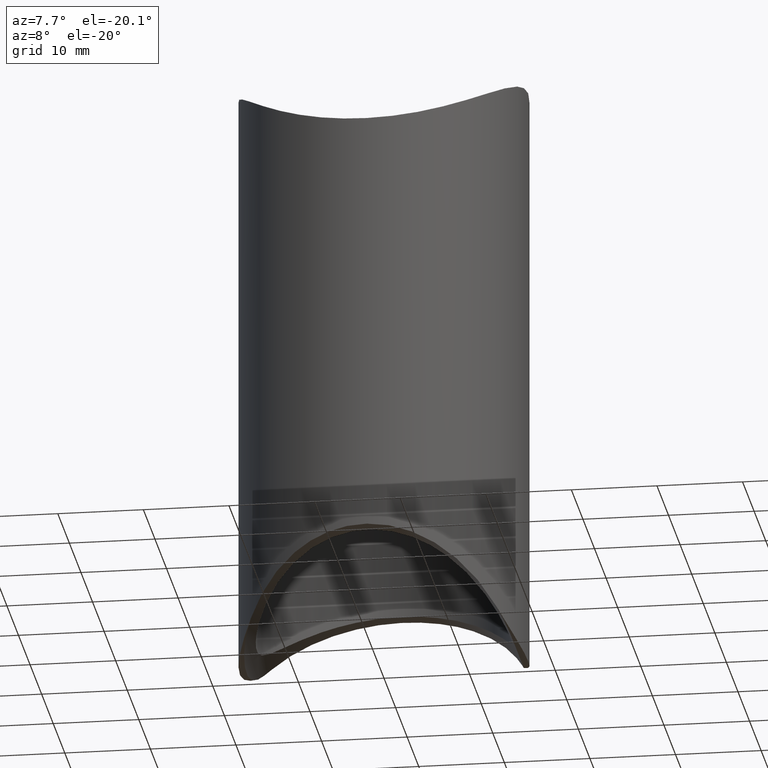
[diagram: clean part render]
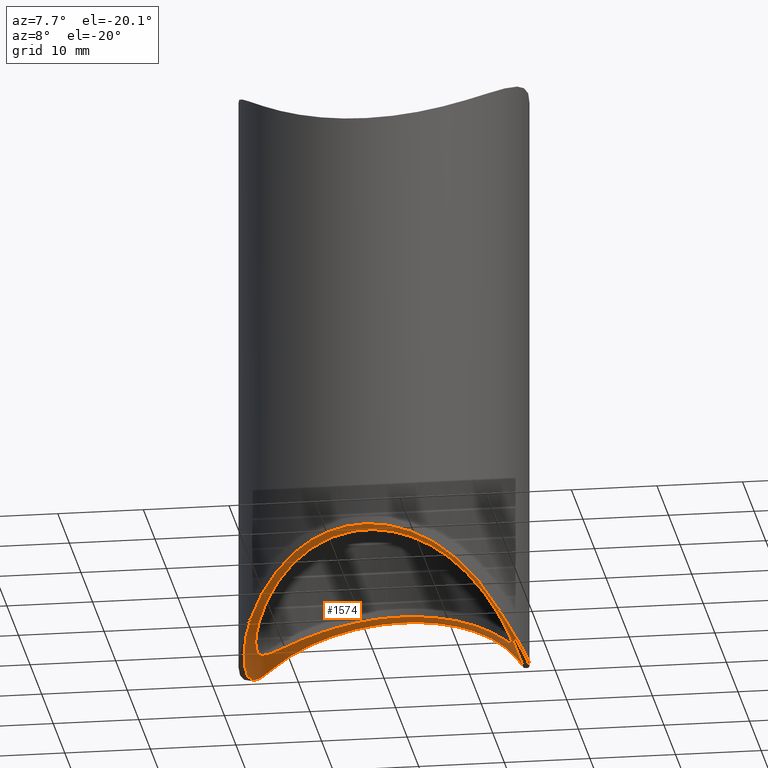
[diagram: same view with one face highlighted and labeled with its STEP entity id]
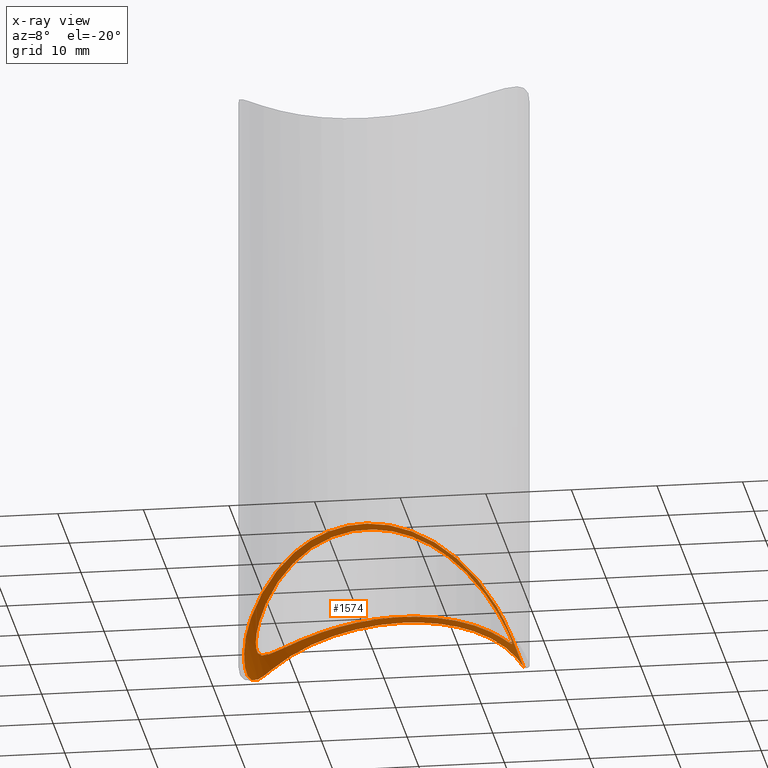
[diagram: x-ray of the same camera — body ghosted, the highlighted face saturated]
A machine part, auxiliary view. The second image highlights one B-rep face of the part: STEP entity #1574.
The next image is the same camera in x-ray: the body ghosted, the highlighted face saturated — about 0% of this face is hidden behind the body in this view.
In plain terms, the highlighted cylindrical surface (partial cylindrical patch) has radius 16.85 mm, axis along (-0, 1, -0).
Its self-contained STEP definition (entity closure, byte-faithful):
#34 = CARTESIAN_POINT ( 'NONE',  ( 14.85000000000000497, 0.5337185454284697483, -36.06258830504228996 ) ) ;
#77 = CARTESIAN_POINT ( 'NONE',  ( -13.80986736641330204, 5.478992954756994216, -34.36552005512524488 ) ) ;
#120 = CARTESIAN_POINT ( 'NONE',  ( -14.84766742364043601, 0.3731762518895063718, -36.05823849699207528 ) ) ;
#165 = CARTESIAN_POINT ( 'NONE',  ( 9.336035647253272174, 11.55756174458075591, -29.99123639260663410 ) ) ;
#216 = CARTESIAN_POINT ( 'NONE',  ( 14.33830603771036039, -8.850733301199310787, -35.17426669880069312 ) ) ;
#250 = CARTESIAN_POINT ( 'NONE',  ( 12.85683658786322781, -7.486485150181893644, -33.10838764306961224 ) ) ;
#284 = CARTESIAN_POINT ( 'NONE',  ( -14.33830603771040302, 8.850733301199255720, -35.17426669880074996 ) ) ;
#294 = CARTESIAN_POINT ( 'NONE',  ( 14.29023625490866856, -4.067199762280973907, -35.09280707293265067 ) ) ;
#324 = VERTEX_POINT ( 'NONE', #9545 ) ;
#340 = CARTESIAN_POINT ( 'NONE',  ( 14.85000000000000320, 0.000000000000000000, -36.06258830504227575 ) ) ;
#505 = DIRECTION ( 'NONE',  ( 0.000000000000000000, 0.000000000000000000, 1.000000000000000000 ) ) ;
#555 = CARTESIAN_POINT ( 'NONE',  ( 13.28827323733147558, -6.693018356430997962, -33.64576833582614768 ) ) ;
#601 = CARTESIAN_POINT ( 'NONE',  ( -2.962489176657164602, -14.55384799524439288, -27.43543255682871518 ) ) ;
#666 = CARTESIAN_POINT ( 'NONE',  ( -15.27404900943557564, -6.697564519343093714, -36.90538022970848431 ) ) ;
#738 = CARTESIAN_POINT ( 'NONE',  ( 14.94563434370530963, 7.696245262310702273, -36.22738822914874390 ) ) ;
#840 = CARTESIAN_POINT ( 'NONE',  ( -16.03255117239265104, 0.4150480287388849110, -38.84042644864182137 ) ) ;
#887 = CARTESIAN_POINT ( 'NONE',  ( -14.66089052385619951, 8.284698056829535417, -35.71456311144023488 ) ) ;
#932 = CARTESIAN_POINT ( 'NONE',  ( -16.00641160165332622, -1.667798721067833112, -38.75729801903477068 ) ) ;
#977 = CARTESIAN_POINT ( 'NONE',  ( -15.37183266572386842, 6.345739140172487858, -37.12030319628423314 ) ) ;
#1012 = CARTESIAN_POINT ( 'NONE',  ( -15.27578327436293826, 6.691575246255256459, -36.90913252329641381 ) ) ;
#1048 = CARTESIAN_POINT ( 'NONE',  ( 14.42511290173060701, 3.561968207167502065, -35.31407602037831595 ) ) ;
#1063 = FACE_BOUND ( 'NONE', #4087, .T. ) ;
#1088 = CARTESIAN_POINT ( 'NONE',  ( -6.866207707502764990, 13.20497876053036279, -28.60648132550580414 ) ) ;
#1106 = EDGE_CURVE ( 'NONE', #324, #10790, #8243, .T. ) ;
#1134 = CARTESIAN_POINT ( 'NONE',  ( 14.70621104912670951, 2.077155966917818120, -35.79964767959629768 ) ) ;
#1181 = CARTESIAN_POINT ( 'NONE',  ( -14.85347316830713460, -0.4204623531433024364, -36.06906498808914563 ) ) ;
#1226 = CARTESIAN_POINT ( 'NONE',  ( 5.153359097162392821, 13.96290337473974041, -27.95266361570251235 ) ) ;
#1274 = CARTESIAN_POINT ( 'NONE',  ( 8.120412847181105676, -12.44227041509037690, -29.25382660443976590 ) ) ;
#1321 = CARTESIAN_POINT ( 'NONE',  ( -10.09023634742619002, -10.93375504787208818, -30.50526876533256981 ) ) ;
#1367 = CARTESIAN_POINT ( 'NONE',  ( -2.703621006105747071, -14.60416598710265923, -27.39126202055344450 ) ) ;
#1574 = ADVANCED_FACE ( 'NONE', ( #1063, #6620 ), #4864, .F. ) ;
#1586 = CARTESIAN_POINT ( 'NONE',  ( -2.186446031989910832, -14.69049639980548605, -27.31541414448777161 ) ) ;
#1631 = CARTESIAN_POINT ( 'NONE',  ( -5.198860883977538982, -13.94593436385049756, -27.96742165834623961 ) ) ;
#1727 = CARTESIAN_POINT ( 'NONE',  ( 6.992480507864952344, 20.75106867027853852, -23.27393132972146361 ) ) ;
#1817 = CARTESIAN_POINT ( 'NONE',  ( 14.67651323802632035, 8.302833124201457693, -35.72216687579848582 ) ) ;
#1859 = CARTESIAN_POINT ( 'NONE',  ( 15.97739153747050267, -2.087235806658165327, -38.67213535089842935 ) ) ;
#2050 = EDGE_CURVE ( 'NONE', #10790, #12705, #11157, .T. ) ;
#2081 = CARTESIAN_POINT ( 'NONE',  ( -1.761881652578448865, 14.74747148871322899, -27.26529369238327405 ) ) ;
#2122 = CARTESIAN_POINT ( 'NONE',  ( -14.69513818397567562, 2.200683682175310629, -35.77938234782533300 ) ) ;
#2161 = CARTESIAN_POINT ( 'NONE',  ( 13.85174356440690246, 5.372735168053187849, -34.42565332718162807 ) ) ;
#2203 = CARTESIAN_POINT ( 'NONE',  ( 14.62643296678601423, 2.579666451399170946, -35.65860753464538391 ) ) ;
#2246 = CARTESIAN_POINT ( 'NONE',  ( 4.195298415236470291, 14.28262021678101412, -27.67318562837164819 ) ) ;
#2289 = CARTESIAN_POINT ( 'NONE',  ( -14.64214189400759558, -2.489221333000799508, -35.68615165807499068 ) ) ;
#2336 = CARTESIAN_POINT ( 'NONE',  ( 10.95587182889223143, -10.03494326004679316, -31.21639626298422598 ) ) ;
#2601 = CARTESIAN_POINT ( 'NONE',  ( -14.04079741491719169, -4.858879712201337853, -34.70578023356798525 ) ) ;
#2646 = CARTESIAN_POINT ( 'NONE',  ( 9.295987571165273522, -11.61989271208340924, -29.94196807366316193 ) ) ;
#2694 = CARTESIAN_POINT ( 'NONE',  ( 15.05772893657610112, -7.356076624847932344, -36.45863205600515755 ) ) ;
#2739 = CARTESIAN_POINT ( 'NONE',  ( 16.02589700891735447, -0.8330019672724850999, -38.81970570695590084 ) ) ;
#2788 = CARTESIAN_POINT ( 'NONE',  ( 14.33830603771035683, 8.850733301199255720, -35.17426669880068602 ) ) ;
#2827 = CARTESIAN_POINT ( 'NONE',  ( 15.37085391537183199, 6.349814861701188917, -37.11805915626118235 ) ) ;
#2878 = CARTESIAN_POINT ( 'NONE',  ( -6.992480507865020734, 20.75106867027851720, -23.27393132972148493 ) ) ;
#3087 = CARTESIAN_POINT ( 'NONE',  ( -11.25192803785623141, 9.733573088986805288, -31.45574601374557488 ) ) ;
#3132 = CARTESIAN_POINT ( 'NONE',  ( 14.73984620838774084, 1.823651298003658994, -35.86028214297031980 ) ) ;
#3177 = CARTESIAN_POINT ( 'NONE',  ( 14.58004324233642990, 2.829680014725449055, -35.57779728234220329 ) ) ;
#3224 = CARTESIAN_POINT ( 'NONE',  ( 0.5949011549592162496, 14.84728096870672687, -27.17739629147825298 ) ) ;
#3240 = CARTESIAN_POINT ( 'NONE',  ( 14.33830603771035683, 8.850733301199255720, -35.17426669880068602 ) ) ;
#3269 = CARTESIAN_POINT ( 'NONE',  ( -11.82028320883488348, 9.034778701579103455, -31.99360113319572818 ) ) ;
#3317 = CARTESIAN_POINT ( 'NONE',  ( -4.238472498119727483, -14.27064078205753361, -27.68366308847048884 ) ) ;
#3354 = CARTESIAN_POINT ( 'NONE',  ( 14.70835926490762624, -2.112078899318651892, -35.80306413579584301 ) ) ;
#3576 = CARTESIAN_POINT ( 'NONE',  ( -13.33885833162109691, -6.592601314833379078, -33.71104094344829605 ) ) ;
#3616 = CARTESIAN_POINT ( 'NONE',  ( -12.91299101705203789, -7.388455275546401246, -33.17550131010271741 ) ) ;
#3661 = CARTESIAN_POINT ( 'NONE',  ( -14.32516193693763285, -3.942390085328985716, -35.14910091414307658 ) ) ;
#3707 = CARTESIAN_POINT ( 'NONE',  ( 16.00641160165331200, 1.667798721067748957, -38.75729801903476357 ) ) ;
#3747 = CARTESIAN_POINT ( 'NONE',  ( 15.61615116683198856, -5.250536131401841722, -37.69345762897508934 ) ) ;
#3805 = CARTESIAN_POINT ( 'NONE',  ( -14.67651323802632746, -8.302833124201519865, -35.72216687579847871 ) ) ;
#3866 =( BOUNDED_CURVE ( )  B_SPLINE_CURVE ( 3, ( #9880, #2878, #1727, #2788 ),
 .UNSPECIFIED., .F., .T. ) 
 B_SPLINE_CURVE_WITH_KNOTS ( ( 4, 4 ),
 ( 5.265416743293894086, 7.300953871065275713 ),
 .UNSPECIFIED. ) 
 CURVE ( )  GEOMETRIC_REPRESENTATION_ITEM ( )  RATIONAL_B_SPLINE_CURVE ( ( 1.000000000000000000, 0.6835107141918608242, 0.6835107141918608242, 1.000000000000000000 ) ) 
 REPRESENTATION_ITEM ( '' )  );
#3896 = CARTESIAN_POINT ( 'NONE',  ( -15.89246403134230157, 3.311973420611289409, -38.42295678475843346 ) ) ;
#3941 = CARTESIAN_POINT ( 'NONE',  ( -15.97739153747052043, 2.087235806658074289, -38.67213535089842225 ) ) ;
#3966 = VERTEX_POINT ( 'NONE', #3240 ) ;
#4035 = CARTESIAN_POINT ( 'NONE',  ( -15.80561270661905482, -4.110770705644724465, -38.17485026464218834 ) ) ;
#4087 = EDGE_LOOP ( 'NONE', ( #7138 ) ) ;
#4107 = CARTESIAN_POINT ( 'NONE',  ( 6.520692853345605222, 13.35111923665892419, -28.48017074970242390 ) ) ;
#4155 = CARTESIAN_POINT ( 'NONE',  ( 2.678880942609608962, 14.61553673861295621, -27.38135068848804110 ) ) ;
#4199 = CARTESIAN_POINT ( 'NONE',  ( 6.959821861796367415, 13.12694510440806006, -28.67245063592170595 ) ) ;
#4238 = CARTESIAN_POINT ( 'NONE',  ( -14.39549266885021339, 3.680163630133699737, -35.26503106070053661 ) ) ;
#4255 = EDGE_CURVE ( 'NONE', #12705, #3966, #3866, .T. ) ;
#4284 = CARTESIAN_POINT ( 'NONE',  ( 11.32765514747299740, 9.645698033166775431, -31.52388058687287398 ) ) ;
#4336 = CARTESIAN_POINT ( 'NONE',  ( -14.75215325585829262, -1.721725660211183229, -35.88256020424506687 ) ) ;
#4379 = CARTESIAN_POINT ( 'NONE',  ( -14.71950306614064097, -1.981103625455974404, -35.82347938490951123 ) ) ;
#4597 = CARTESIAN_POINT ( 'NONE',  ( -11.34192196800901087, -9.596346335307353925, -31.55760541920022533 ) ) ;
#4641 = CARTESIAN_POINT ( 'NONE',  ( -14.44722063276459245, -3.471204382162122570, -35.35091498290922374 ) ) ;
#4687 = CARTESIAN_POINT ( 'NONE',  ( -9.395726281820008907, -11.53808554132294084, -30.00940244348284125 ) ) ;
#4859 = CARTESIAN_POINT ( 'NONE',  ( 16.03248700980444497, 0.8360511581702350092, -38.84022803782291078 ) ) ;
#4864 = CYLINDRICAL_SURFACE ( 'NONE', #7438, 16.85000000000000142 ) ;
#4918 = CARTESIAN_POINT ( 'NONE',  ( -15.89209639272137764, -3.318211720567431300, -38.42186081145047893 ) ) ;
#5003 = CARTESIAN_POINT ( 'NONE',  ( -16.02589700891736513, 0.8330019672723938395, -38.81970570695592215 ) ) ;
#5125 = CARTESIAN_POINT ( 'NONE',  ( -13.26467870434423091, 6.738545894726238217, -33.61573697114086912 ) ) ;
#5169 = CARTESIAN_POINT ( 'NONE',  ( 10.37795952091324558, 10.63149315026179487, -30.74387540105810501 ) ) ;
#5211 = CARTESIAN_POINT ( 'NONE',  ( -4.050271645165130607, 14.29604574488175750, -27.66128690687451552 ) ) ;
#5258 = CARTESIAN_POINT ( 'NONE',  ( -9.981113102458014197, 11.03293754553538264, -30.42465399057771691 ) ) ;
#5264 = CARTESIAN_POINT ( 'NONE',  ( -14.33830603771036927, -8.850733301199310787, -35.17426669880068602 ) ) ;
#5305 = CARTESIAN_POINT ( 'NONE',  ( -8.247648307270500467, -12.35799113853138742, -29.32475053929826814 ) ) ;
#5347 = CARTESIAN_POINT ( 'NONE',  ( 9.999510993327104913, -11.01667531282564205, -30.43794333616117598 ) ) ;
#5392 = CARTESIAN_POINT ( 'NONE',  ( 7.708501237368294845, -12.70195840869459047, -29.03420245230134356 ) ) ;
#5468 = ORIENTED_EDGE ( 'NONE', *, *, #2050, .T. ) ;
#5620 = CARTESIAN_POINT ( 'NONE',  ( -11.03978959069899979, -9.942579546653941946, -31.28867708699897676 ) ) ;
#5664 = CARTESIAN_POINT ( 'NONE',  ( 4.046708372150499500, -14.29722004230590393, -27.66026429259286701 ) ) ;
#5861 = CARTESIAN_POINT ( 'NONE',  ( -14.94563434370531674, -7.696245262310778656, -36.22738822914872969 ) ) ;
#5891 = CARTESIAN_POINT ( 'NONE',  ( 15.80561270661904771, 4.110770705644641865, -38.17485026464221676 ) ) ;
#5906 = CARTESIAN_POINT ( 'NONE',  ( -14.93572944484840725, 7.674737671180441367, -36.21929322985293709 ) ) ;
#6076 = CARTESIAN_POINT ( 'NONE',  ( -15.54254231652667961, -5.623557291692793392, -37.51359767441859105 ) ) ;
#6108 = CARTESIAN_POINT ( 'NONE',  ( -2.024146193593749476, 14.71372595802833949, -27.29498613379446326 ) ) ;
#6151 = CARTESIAN_POINT ( 'NONE',  ( -5.496291467139168496, 13.80440955620377963, -28.08914305072277529 ) ) ;
#6195 = CARTESIAN_POINT ( 'NONE',  ( -2.796602950750834093, 14.58657892811595147, -27.40670782658535742 ) ) ;
#6238 = CARTESIAN_POINT ( 'NONE',  ( -14.83852790279338940, 0.6408443824371897746, -36.04115751292867742 ) ) ;
#6286 = CARTESIAN_POINT ( 'NONE',  ( 14.30074613296590336, 4.029472854742030208, -35.10978721393541946 ) ) ;
#6295 = CARTESIAN_POINT ( 'NONE',  ( -6.992480507864962114, -20.75106867027850299, -23.27393132972149559 ) ) ;
#6329 = CARTESIAN_POINT ( 'NONE',  ( -1.146891711628780453, -14.81489610819413727, -27.20595222640935518 ) ) ;
#6375 = CARTESIAN_POINT ( 'NONE',  ( 0.4292279381722697851, -14.84615855348004310, -27.17838640742304790 ) ) ;
#6422 = CARTESIAN_POINT ( 'NONE',  ( 3.548469635563034963, -14.42913428704138745, -27.54479027984893591 ) ) ;
#6561 = CARTESIAN_POINT ( 'NONE',  ( 14.93572944484838239, -7.674737671180534626, -36.21929322985292288 ) ) ;
#6620 = FACE_OUTER_BOUND ( 'NONE', #11158, .T. ) ;
#6691 = CARTESIAN_POINT ( 'NONE',  ( 0.9584056542086568653, -14.82140745745683574, -27.20019436182138506 ) ) ;
#6780 = CARTESIAN_POINT ( 'NONE',  ( 14.50742055424329457, -8.576765528027674890, -35.44823447197251909 ) ) ;
#6906 = CARTESIAN_POINT ( 'NONE',  ( 15.27578327436291339, -6.691575246255349718, -36.90913252329639249 ) ) ;
#6961 = CARTESIAN_POINT ( 'NONE',  ( -16.03248700980445918, -0.8360511581703217177, -38.84022803782292499 ) ) ;
#7092 = CARTESIAN_POINT ( 'NONE',  ( -15.80675836441401394, 4.103148943636785617, -38.17783707643135216 ) ) ;
#7128 = CARTESIAN_POINT ( 'NONE',  ( 12.62871516008825878, 7.825517943811307831, -32.86386110683889683 ) ) ;
#7138 = ORIENTED_EDGE ( 'NONE', *, *, #12397, .T. ) ;
#7174 = CARTESIAN_POINT ( 'NONE',  ( -14.26696052176923857, 4.147269479893059163, -35.05570393558183895 ) ) ;
#7214 = CARTESIAN_POINT ( 'NONE',  ( 14.82137406707583338, 1.055676076428416987, -36.00863508246413858 ) ) ;
#7254 = CARTESIAN_POINT ( 'NONE',  ( -14.61090882865943108, 2.700954780088081986, -35.62925058752862384 ) ) ;
#7300 = CARTESIAN_POINT ( 'NONE',  ( 8.199149273984781772, 12.39025577956445723, -29.29760808491955970 ) ) ;
#7343 = CARTESIAN_POINT ( 'NONE',  ( -7.847113194740653164, -12.61670451861868258, -29.10639145206129186 ) ) ;
#7384 = CARTESIAN_POINT ( 'NONE',  ( 11.83050660826200051, -8.987142288447667937, -32.02016545658872104 ) ) ;
#7438 = AXIS2_PLACEMENT_3D ( 'NONE', #8514, #8471, #505 ) ;
#7650 = CARTESIAN_POINT ( 'NONE',  ( 13.83324424046044321, -5.420046482378499952, -34.39899913380897090 ) ) ;
#7694 = CARTESIAN_POINT ( 'NONE',  ( -14.59752979601756806, -2.738039412245442783, -35.60808354691256739 ) ) ;
#7761 = CARTESIAN_POINT ( 'NONE',  ( -15.37085391537184442, -6.349814861701263524, -37.11805915626118946 ) ) ;
#7833 = CARTESIAN_POINT ( 'NONE',  ( 15.99829739484042612, -1.670812307845578548, -38.73548734911563685 ) ) ;
#7924 = CARTESIAN_POINT ( 'NONE',  ( 15.54183458020775710, -5.626486496312912422, -37.51197801817649236 ) ) ;
#8058 = CARTESIAN_POINT ( 'NONE',  ( -15.05772893657612599, 7.356076624847839085, -36.45863205600517176 ) ) ;
#8129 = CARTESIAN_POINT ( 'NONE',  ( 7.798157637525822139, 12.64691842238175923, -29.08081618874095753 ) ) ;
#8172 = CARTESIAN_POINT ( 'NONE',  ( -3.555295014665622144, 14.42738607371107129, -27.54632078535466277 ) ) ;
#8217 = CARTESIAN_POINT ( 'NONE',  ( 11.88671115716818427, 8.946021942756241074, -32.06003155815450611 ) ) ;
#8243 =( BOUNDED_CURVE ( )  B_SPLINE_CURVE ( 3, ( #216, #12347, #6295, #9308 ),
 .UNSPECIFIED., .F., .F. ) 
 B_SPLINE_CURVE_WITH_KNOTS ( ( 4, 4 ),
 ( 5.265416743293897639, 7.300953871065274825 ),
 .UNSPECIFIED. ) 
 CURVE ( )  GEOMETRIC_REPRESENTATION_ITEM ( )  RATIONAL_B_SPLINE_CURVE ( ( 1.000000000000000000, 0.6835107141918621565, 0.6835107141918621565, 1.000000000000000000 ) ) 
 REPRESENTATION_ITEM ( '' )  );
#8259 = CARTESIAN_POINT ( 'NONE',  ( 8.968094523146223906, 11.84558009233951736, -29.75281018689225832 ) ) ;
#8300 = CARTESIAN_POINT ( 'NONE',  ( -0.4503798214893974250, 14.85236740604971040, -27.17291359742175061 ) ) ;
#8346 = CARTESIAN_POINT ( 'NONE',  ( -7.005887995645437627, -13.10251700222812588, -28.69334647240638247 ) ) ;
#8384 = CARTESIAN_POINT ( 'NONE',  ( 1.224867209540094093, -14.80177102240165077, -27.21749374236323860 ) ) ;
#8428 = ORIENTED_EDGE ( 'NONE', *, *, #4255, .T. ) ;
#8471 = DIRECTION ( 'NONE',  ( -0.000000000000000000, 1.000000000000000000, -0.000000000000000000 ) ) ;
#8514 = CARTESIAN_POINT ( 'NONE',  ( -7.288179263425684655E-15, -16.85000000000000142, -44.02499999999999858 ) ) ;
#8572 = CARTESIAN_POINT ( 'NONE',  ( 15.37183266572384710, -6.345739140172580228, -37.12030319628421182 ) ) ;
#8652 = CARTESIAN_POINT ( 'NONE',  ( 14.82059633009705379, -1.070809956460375245, -36.00714579572598950 ) ) ;
#8696 = CARTESIAN_POINT ( 'NONE',  ( 5.501981088473553605, -13.80218147165003906, -28.09107526868159965 ) ) ;
#8778 = CARTESIAN_POINT ( 'NONE',  ( 15.27404900943556498, 6.697564519343016443, -36.90538022970848431 ) ) ;
#9090 = CARTESIAN_POINT ( 'NONE',  ( -14.33830603771040302, 8.850733301199255720, -35.17426669880074996 ) ) ;
#9118 = CARTESIAN_POINT ( 'NONE',  ( -0.9742325924817968330, 14.82740503015124034, -27.19492867642007639 ) ) ;
#9163 = CARTESIAN_POINT ( 'NONE',  ( -14.80625528133571578, 1.169357254391273360, -35.98146497339254068 ) ) ;
#9208 = CARTESIAN_POINT ( 'NONE',  ( 14.85000000000000320, 0.000000000000000000, -36.06258830504227575 ) ) ;
#9252 = CARTESIAN_POINT ( 'NONE',  ( 12.85979648648153528, 7.440027366611723814, -33.13167915402733144 ) ) ;
#9308 = CARTESIAN_POINT ( 'NONE',  ( -14.33830603771036927, -8.850733301199310787, -35.17426669880068602 ) ) ;
#9338 = CARTESIAN_POINT ( 'NONE',  ( -6.562503311283061080, -13.33059395647258505, -28.49780065621222747 ) ) ;
#9385 = CARTESIAN_POINT ( 'NONE',  ( 14.62663173425264240, -2.614039007887573263, -35.65682215715171566 ) ) ;
#9545 = CARTESIAN_POINT ( 'NONE',  ( 14.33830603771036039, -8.850733301199310787, -35.17426669880069312 ) ) ;
#9652 = CARTESIAN_POINT ( 'NONE',  ( -13.87761221008346979, -5.305717460286821563, -34.46312374063735007 ) ) ;
#9693 = CARTESIAN_POINT ( 'NONE',  ( 11.25797763761319459, -9.694717769586524980, -31.48167992380756530 ) ) ;
#9712 = EDGE_CURVE ( 'NONE', #3966, #324, #11015, .T. ) ;
#9810 = ORIENTED_EDGE ( 'NONE', *, *, #9712, .T. ) ;
#9874 = CARTESIAN_POINT ( 'NONE',  ( 15.61598201808591035, 5.251189557176251022, -37.69306571020722885 ) ) ;
#9880 = CARTESIAN_POINT ( 'NONE',  ( -14.33830603771040302, 8.850733301199255720, -35.17426669880074996 ) ) ;
#9922 = CARTESIAN_POINT ( 'NONE',  ( 15.89209639272137409, 3.318211720567351808, -38.42186081145050025 ) ) ;
#10068 = CARTESIAN_POINT ( 'NONE',  ( -15.54183458020777486, 5.626486496312820940, -37.51197801817650657 ) ) ;
#10191 = CARTESIAN_POINT ( 'NONE',  ( 10.04095430796600930, 10.95070918579793684, -30.48663528411497481 ) ) ;
#10237 = CARTESIAN_POINT ( 'NONE',  ( 13.29003430593662216, 6.641036141799102843, -33.66093743389916426 ) ) ;
#10285 = CARTESIAN_POINT ( 'NONE',  ( -9.277032841501926086, 11.63495390418400000, -29.92951312976327571 ) ) ;
#10329 = CARTESIAN_POINT ( 'NONE',  ( 2.156754270076864710, 14.70186584171747590, -27.30542736181615737 ) ) ;
#10372 = CARTESIAN_POINT ( 'NONE',  ( 0.1654096244111736280, -14.85140885249488996, -27.17375837703135133 ) ) ;
#10419 = CARTESIAN_POINT ( 'NONE',  ( 14.85000000000000142, -0.5337185454284697483, -36.06258830504225443 ) ) ;
#10640 = CARTESIAN_POINT ( 'NONE',  ( -11.90753864018524943, -8.884794901857180349, -32.09664533163703481 ) ) ;
#10682 = CARTESIAN_POINT ( 'NONE',  ( -12.17183793919947554, -8.518913561785232957, -32.36727827193488594 ) ) ;
#10723 = CARTESIAN_POINT ( 'NONE',  ( 12.10154892819007522, -8.618631868014196229, -32.29418346242481164 ) ) ;
#10774 = CARTESIAN_POINT ( 'NONE',  ( 14.66089052385617286, -8.284698056829631341, -35.71456311144020646 ) ) ;
#10790 = VERTEX_POINT ( 'NONE', #5264 ) ;
#10816 = CARTESIAN_POINT ( 'NONE',  ( 14.33830603771036039, -8.850733301199310787, -35.17426669880069312 ) ) ;
#10900 = CARTESIAN_POINT ( 'NONE',  ( 14.33830603771035683, 8.850733301199255720, -35.17426669880068602 ) ) ;
#10954 = CARTESIAN_POINT ( 'NONE',  ( -15.99829739484043323, 1.670812307845487066, -38.73548734911565106 ) ) ;
#11015 = B_SPLINE_CURVE_WITH_KNOTS ( 'NONE', 3,
 ( #10900, #1817, #738, #8778, #2827, #12602, #9874, #5891, #9922, #3707, #4859, #12894, #2739, #7833, #1859, #11924, #12935, #3747, #7924, #8572, #6906, #2694, #6561, #10774, #6780, #10816 ),
 .UNSPECIFIED., .F., .F.,
 ( 4, 2, 2, 2, 2, 2, 2, 2, 2, 2, 2, 2, 4 ),
 ( 8.845388854693243284E-18, 0.002497983084674302787, 0.003746974627011456348, 0.004995966169348609910, 0.007493949254022919636, 0.009991932338697230229, 0.01124092388103438596, 0.01248991542337154169, 0.01498789850804584795, 0.01623689005038300714, 0.01748588159272016287, 0.01873487313505731860, 0.01998386467739447434 ),
 .UNSPECIFIED. ) ;
#11157 = B_SPLINE_CURVE_WITH_KNOTS ( 'NONE', 3,
 ( #12867, #3805, #5861, #666, #7761, #6076, #11943, #4035, #4918, #932, #6961, #840, #5003, #10954, #3941, #3896, #7092, #12075, #10068, #977, #1012, #8058, #5906, #887, #12950, #9090 ),
 .UNSPECIFIED., .F., .F.,
 ( 4, 2, 2, 2, 2, 2, 2, 2, 2, 2, 2, 2, 4 ),
 ( 1.734723475976807094E-18, 0.002497983084674298016, 0.003746974627011447241, 0.004995966169348596900, 0.007493949254022899686, 0.009991932338697202473, 0.01124092388103435300, 0.01248991542337150699, 0.01498789850804581325, 0.01623689005038296551, 0.01748588159272012471, 0.01873487313505727697, 0.01998386467739442923 ),
 .UNSPECIFIED. ) ;
#11158 = EDGE_LOOP ( 'NONE', ( #8428, #9810, #12745, #5468 ) ) ;
#11160 = CARTESIAN_POINT ( 'NONE',  ( -12.83261408202376508, 7.527970320439417051, -33.07978782064744649 ) ) ;
#11183 = B_SPLINE_CURVE_WITH_KNOTS ( 'NONE', 3,
 ( #9208, #34, #7214, #3132, #1134, #2203, #3177, #1048, #6286, #12161, #2161, #12250, #10237, #9252, #7128, #8217, #4284, #5169, #10191, #165, #8259, #7300, #8129, #4199, #4107, #1226, #2246, #4155, #10329, #11341, #3224, #8300, #9118, #2081, #6108, #11251, #6195, #8172, #5211, #12340, #6151, #1088, #12298, #10285, #5258, #3087, #3269, #11160, #5125, #77, #12203, #7174, #4238, #7254, #2122, #11206, #9163, #6238, #120, #1181, #11292, #4336, #4379, #2289, #7694, #4641, #3661, #2601, #9652, #3576, #3616, #10682, #10640, #4597, #5620, #1321, #4687, #5305, #7343, #8346, #9338, #1631, #3317, #601, #1367, #1586, #12388, #6329, #11386, #10372, #6375, #6691, #8384, #12477, #11699, #6422, #5664, #12731, #8696, #11431, #12685, #5392, #1274, #2646, #5347, #2336, #9693, #7384, #10723, #250, #555, #7650, #12429, #294, #11651, #9385, #3354, #8652, #10419, #340 ),
 .UNSPECIFIED., .T., .F.,
 ( 4, 2, 2, 2, 2, 2, 2, 2, 2, 2, 2, 2, 2, 2, 2, 2, 2, 2, 2, 2, 2, 2, 2, 2, 2, 2, 2, 2, 2, 2, 2, 2, 2, 2, 2, 2, 2, 2, 2, 2, 2, 2, 2, 2, 2, 2, 2, 2, 2, 2, 2, 2, 2, 2, 2, 2, 2, 2, 2, 4 ),
 ( 0.000000000000000000, 0.001572259968968426009, 0.002358389953452639121, 0.003144519937936852451, 0.004716779906905279977, 0.006289039875873706636, 0.007861299844842132428, 0.009433559813810561689, 0.01257807975174742195, 0.01415033972071584774, 0.01572259968968427180, 0.01729485965865269759, 0.01886711962762112685, 0.02201163956555797496, 0.02358389953452640075, 0.02515615950349482655, 0.02672841947246325234, 0.02751454945694746523, 0.02830067944143167813, 0.02987293941040010739, 0.03144519937936852971, 0.03458971931730538824, 0.03773423925524224676, 0.04087875919317910528, 0.04402327913111594992, 0.04559553910008438266, 0.04716779906905281539, 0.04874005903802124812, 0.04952618902250546101, 0.05031231900698967391, 0.05188457897595809970, 0.05267070896044231260, 0.05345683894492652549, 0.05502909891389495822, 0.05660135888286338401, 0.05974587882080024948, 0.06131813878976867527, 0.06289039875873708718, 0.06603491869667393876, 0.06760717866564236456, 0.06917943863461079035, 0.07232395857254764193, 0.07311008855703185483, 0.07389621854151606772, 0.07546847851048449352, 0.07625460849496870641, 0.07704073847945291931, 0.07861299844842134510, 0.08018525841738977089, 0.08175751838635819668, 0.08332977835532662247, 0.08490203832429504827, 0.08804655826223189985, 0.08961881823120032564, 0.09119107820016875143, 0.09433559813810560302, 0.09590785810707402881, 0.09748011807604245460, 0.09905237804501088039, 0.1006246380139793062 ),
 .UNSPECIFIED. ) ;
#11206 = CARTESIAN_POINT ( 'NONE',  ( -14.78327366311099667, 1.429761704044356652, -35.93914698503817107 ) ) ;
#11251 = CARTESIAN_POINT ( 'NONE',  ( -2.540995714757373847, 14.63332635317689956, -27.36565209697405976 ) ) ;
#11292 = CARTESIAN_POINT ( 'NONE',  ( -14.82912093102056339, -0.9439979590065424864, -36.02305783197200384 ) ) ;
#11341 = CARTESIAN_POINT ( 'NONE',  ( 1.116329203746461607, 14.81722839529095914, -27.20389696560109982 ) ) ;
#11386 = CARTESIAN_POINT ( 'NONE',  ( -0.6237800207583813483, -14.84621902967044704, -27.17833217506265342 ) ) ;
#11431 = CARTESIAN_POINT ( 'NONE',  ( 6.417022562489364645, -13.40126228035189904, -28.43706958336856161 ) ) ;
#11651 = CARTESIAN_POINT ( 'NONE',  ( 14.41813203663477339, -3.590128743982633708, -35.30248746787090397 ) ) ;
#11699 = CARTESIAN_POINT ( 'NONE',  ( 2.533044589257095858, -14.64155859657097736, -27.35848763887567969 ) ) ;
#11924 = CARTESIAN_POINT ( 'NONE',  ( 15.89246403134228558, -3.311973420611380448, -38.42295678475842635 ) ) ;
#11943 = CARTESIAN_POINT ( 'NONE',  ( -15.61598201808591746, -5.251189557176329181, -37.69306571020721464 ) ) ;
#12075 = CARTESIAN_POINT ( 'NONE',  ( -15.61615116683200455, 5.250536131401748463, -37.69345762897508934 ) ) ;
#12161 = CARTESIAN_POINT ( 'NONE',  ( 14.01409186715147825, 4.934898234582029808, -34.66564168228467935 ) ) ;
#12203 = CARTESIAN_POINT ( 'NONE',  ( -13.97427200098111122, 5.046357965024868442, -34.60618072880127016 ) ) ;
#12250 = CARTESIAN_POINT ( 'NONE',  ( 13.48994402158535344, 6.225631956244853882, -33.92353146252830953 ) ) ;
#12298 = CARTESIAN_POINT ( 'NONE',  ( -7.709432403833401004, 12.72792766735870273, -29.01464555841385007 ) ) ;
#12340 = CARTESIAN_POINT ( 'NONE',  ( -5.019721165710850030, 13.98513581478187717, -27.93220018106639557 ) ) ;
#12347 = CARTESIAN_POINT ( 'NONE',  ( 6.992480507864962114, -20.75106867027850299, -23.27393132972149914 ) ) ;
#12388 = CARTESIAN_POINT ( 'NONE',  ( -1.927114166700721887, -14.72675228324965246, -27.28352341814996151 ) ) ;
#12397 = EDGE_CURVE ( 'NONE', #12580, #12580, #11183, .T. ) ;
#12429 = CARTESIAN_POINT ( 'NONE',  ( 13.99770496117156071, -4.981688664238031805, -34.64101478435459569 ) ) ;
#12477 = CARTESIAN_POINT ( 'NONE',  ( 2.015863645567583351, -14.72208185294933180, -27.28764480604839093 ) ) ;
#12580 = VERTEX_POINT ( 'NONE', #12821 ) ;
#12602 = CARTESIAN_POINT ( 'NONE',  ( 15.54254231652667784, 5.623557291692718785, -37.51359767441861237 ) ) ;
#12685 = CARTESIAN_POINT ( 'NONE',  ( 6.857776377904219345, -13.18072994539280707, -28.62643170313371144 ) ) ;
#12705 = VERTEX_POINT ( 'NONE', #284 ) ;
#12731 = CARTESIAN_POINT ( 'NONE',  ( 5.024938777787641087, -13.98343090471120931, -27.93368514688730997 ) ) ;
#12745 = ORIENTED_EDGE ( 'NONE', *, *, #1106, .T. ) ;
#12821 = CARTESIAN_POINT ( 'NONE',  ( 14.85000000000000142, 0.000000000000000000, -36.06258830504226154 ) ) ;
#12867 = CARTESIAN_POINT ( 'NONE',  ( -14.33830603771036927, -8.850733301199310787, -35.17426669880068602 ) ) ;
#12894 = CARTESIAN_POINT ( 'NONE',  ( 16.03255117239264038, -0.4150480287389720635, -38.84042644864182847 ) ) ;
#12935 = CARTESIAN_POINT ( 'NONE',  ( 15.80675836441399973, -4.103148943636881540, -38.17783707643135926 ) ) ;
#12950 = CARTESIAN_POINT ( 'NONE',  ( -14.50742055424330879, 8.576765528027605612, -35.44823447197251909 ) ) ;